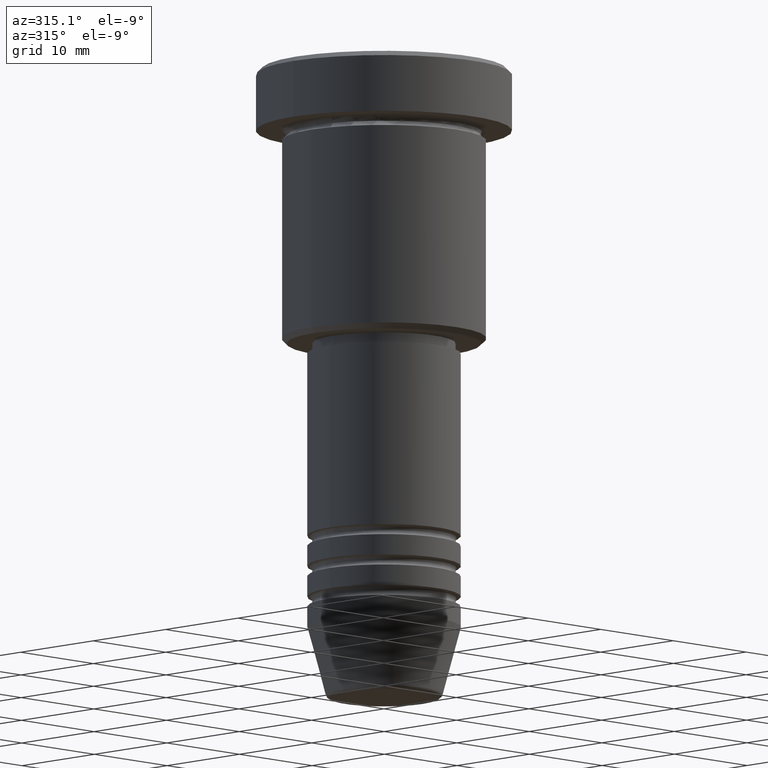
[diagram: clean part render]
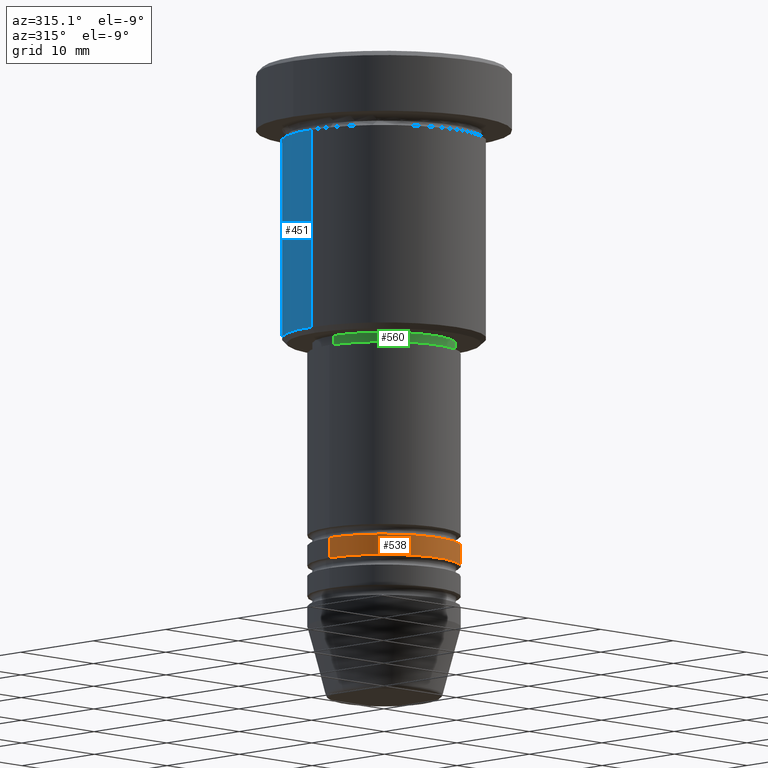
[diagram: same view with three faces highlighted in distinct colors, each labeled with its STEP entity id]
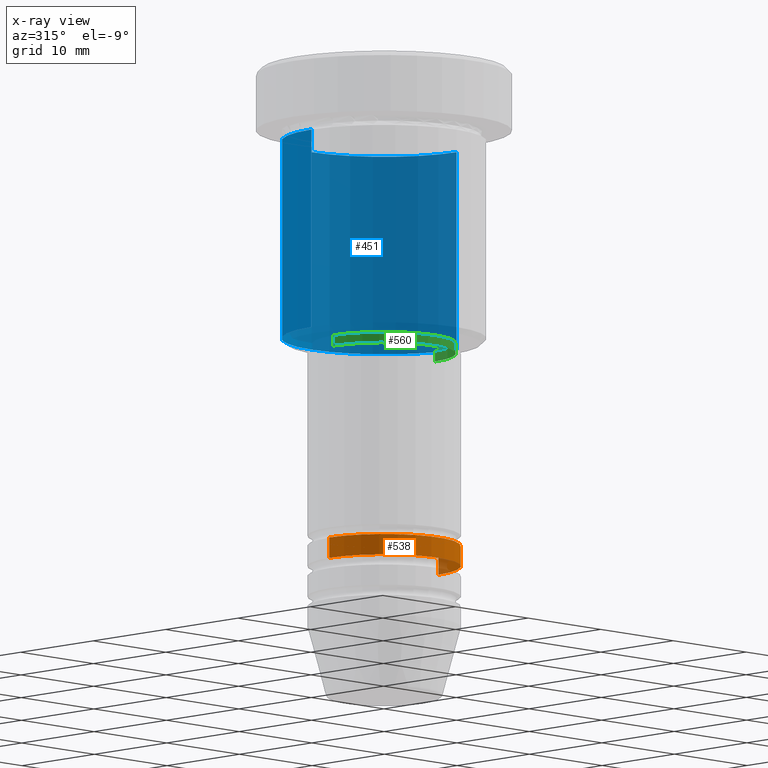
[diagram: x-ray of the same camera — body ghosted, the three highlighted faces saturated]
A machine part, auxiliary view with three faces highlighted in distinct colors.
The next image is the same camera in x-ray (body ghosted, the three faces saturated) — at least one of them is partly hidden behind the body in this view.
Their STEP definitions:

[orange] entity #538 — the highlighted cylindrical surface (partial cylindrical patch) has radius 7.5 mm, axis along (-0, -0, 1).
#19 = LINE ( 'NONE', #531, #896 ) ;
#24 = ORIENTED_EDGE ( 'NONE', *, *, #255, .F. ) ;
#52 = CARTESIAN_POINT ( 'NONE',  ( 7.500000000000000000, 0.000000000000000000, -46.99999999999998579 ) ) ;
#56 = EDGE_CURVE ( 'NONE', #293, #922, #571, .T. ) ;
#109 = VERTEX_POINT ( 'NONE', #52 ) ;
#128 = DIRECTION ( 'NONE',  ( 1.000000000000000000, 0.000000000000000000, 0.000000000000000000 ) ) ;
#158 = VERTEX_POINT ( 'NONE', #358 ) ;
#208 = CARTESIAN_POINT ( 'NONE',  ( -7.500000000000000000, 9.184850993605147944E-16, 0.000000000000000000 ) ) ;
#252 = DIRECTION ( 'NONE',  ( 1.000000000000000000, 0.000000000000000000, 0.000000000000000000 ) ) ;
#255 = EDGE_CURVE ( 'NONE', #922, #109, #506, .T. ) ;
#265 = CARTESIAN_POINT ( 'NONE',  ( -7.500000000000000000, 9.184850993605147944E-16, -48.99999999999997868 ) ) ;
#292 = AXIS2_PLACEMENT_3D ( 'NONE', #824, #373, #1113 ) ;
#293 = VERTEX_POINT ( 'NONE', #265 ) ;
#320 = CARTESIAN_POINT ( 'NONE',  ( 0.000000000000000000, 0.000000000000000000, 0.000000000000000000 ) ) ;
#336 = DIRECTION ( 'NONE',  ( -0.000000000000000000, -0.000000000000000000, 1.000000000000000000 ) ) ;
#337 = EDGE_CURVE ( 'NONE', #158, #109, #19, .T. ) ;
#358 = CARTESIAN_POINT ( 'NONE',  ( 7.500000000000000000, 0.000000000000000000, -48.99999999999997868 ) ) ;
#373 = DIRECTION ( 'NONE',  ( -0.000000000000000000, -0.000000000000000000, 1.000000000000000000 ) ) ;
#430 = FACE_OUTER_BOUND ( 'NONE', #1135, .T. ) ;
#462 = ORIENTED_EDGE ( 'NONE', *, *, #56, .F. ) ;
#506 = CIRCLE ( 'NONE', #292, 7.500000000000000000 ) ;
#531 = CARTESIAN_POINT ( 'NONE',  ( 7.500000000000000000, 0.000000000000000000, 0.000000000000000000 ) ) ;
#538 = ADVANCED_FACE ( 'NONE', ( #430 ), #789, .T. ) ;
#544 = AXIS2_PLACEMENT_3D ( 'NONE', #757, #336, #128 ) ;
#566 = EDGE_CURVE ( 'NONE', #293, #158, #1132, .T. ) ;
#571 = LINE ( 'NONE', #208, #1058 ) ;
#757 = CARTESIAN_POINT ( 'NONE',  ( 0.000000000000000000, 0.000000000000000000, -48.99999999999997868 ) ) ;
#775 = CARTESIAN_POINT ( 'NONE',  ( -7.500000000000000000, 9.184850993605147944E-16, -46.99999999999998579 ) ) ;
#789 = CYLINDRICAL_SURFACE ( 'NONE', #1040, 7.500000000000000000 ) ;
#824 = CARTESIAN_POINT ( 'NONE',  ( 0.000000000000000000, 0.000000000000000000, -46.99999999999998579 ) ) ;
#873 = ORIENTED_EDGE ( 'NONE', *, *, #337, .T. ) ;
#896 = VECTOR ( 'NONE', #995, 1000.000000000000000 ) ;
#906 = ORIENTED_EDGE ( 'NONE', *, *, #566, .T. ) ;
#922 = VERTEX_POINT ( 'NONE', #775 ) ;
#928 = DIRECTION ( 'NONE',  ( -0.000000000000000000, -0.000000000000000000, 1.000000000000000000 ) ) ;
#981 = DIRECTION ( 'NONE',  ( -0.000000000000000000, -0.000000000000000000, 1.000000000000000000 ) ) ;
#995 = DIRECTION ( 'NONE',  ( -0.000000000000000000, -0.000000000000000000, 1.000000000000000000 ) ) ;
#1040 = AXIS2_PLACEMENT_3D ( 'NONE', #320, #981, #252 ) ;
#1058 = VECTOR ( 'NONE', #928, 1000.000000000000000 ) ;
#1113 = DIRECTION ( 'NONE',  ( 1.000000000000000000, 0.000000000000000000, 0.000000000000000000 ) ) ;
#1132 = CIRCLE ( 'NONE', #544, 7.500000000000000000 ) ;
#1135 = EDGE_LOOP ( 'NONE', ( #462, #906, #873, #24 ) ) ;

[blue] entity #451 — the highlighted cylindrical surface (partial cylindrical patch) has radius 10 mm, axis along (-0, -0, 1).
#14 = CARTESIAN_POINT ( 'NONE',  ( 0.000000000000000000, 0.000000000000000000, -26.50000000000000355 ) ) ;
#71 = CARTESIAN_POINT ( 'NONE',  ( 10.00000000000000000, 0.000000000000000000, 0.000000000000000000 ) ) ;
#89 = ORIENTED_EDGE ( 'NONE', *, *, #340, .T. ) ;
#95 = DIRECTION ( 'NONE',  ( -0.000000000000000000, -0.000000000000000000, 1.000000000000000000 ) ) ;
#101 = LINE ( 'NONE', #1007, #655 ) ;
#103 = ORIENTED_EDGE ( 'NONE', *, *, #183, .F. ) ;
#159 = AXIS2_PLACEMENT_3D ( 'NONE', #14, #278, #540 ) ;
#183 = EDGE_CURVE ( 'NONE', #324, #515, #279, .T. ) ;
#186 = CARTESIAN_POINT ( 'NONE',  ( 10.00000000000000000, 0.000000000000000000, -26.50000000000000355 ) ) ;
#250 = AXIS2_PLACEMENT_3D ( 'NONE', #807, #624, #294 ) ;
#259 = CYLINDRICAL_SURFACE ( 'NONE', #876, 10.00000000000000000 ) ;
#278 = DIRECTION ( 'NONE',  ( -0.000000000000000000, -0.000000000000000000, 1.000000000000000000 ) ) ;
#279 = LINE ( 'NONE', #71, #936 ) ;
#294 = DIRECTION ( 'NONE',  ( 1.000000000000000000, 0.000000000000000000, 0.000000000000000000 ) ) ;
#296 = CIRCLE ( 'NONE', #159, 10.00000000000000000 ) ;
#322 = EDGE_CURVE ( 'NONE', #515, #768, #408, .T. ) ;
#324 = VERTEX_POINT ( 'NONE', #186 ) ;
#340 = EDGE_CURVE ( 'NONE', #1183, #768, #101, .T. ) ;
#408 = CIRCLE ( 'NONE', #250, 10.00000000000000000 ) ;
#416 = CARTESIAN_POINT ( 'NONE',  ( 10.00000000000000000, 0.000000000000000000, -6.999999999999996447 ) ) ;
#439 = ORIENTED_EDGE ( 'NONE', *, *, #1082, .T. ) ;
#451 = ADVANCED_FACE ( 'NONE', ( #514 ), #259, .T. ) ;
#514 = FACE_OUTER_BOUND ( 'NONE', #666, .T. ) ;
#515 = VERTEX_POINT ( 'NONE', #416 ) ;
#530 = ORIENTED_EDGE ( 'NONE', *, *, #322, .F. ) ;
#540 = DIRECTION ( 'NONE',  ( -1.000000000000000000, 0.000000000000000000, 0.000000000000000000 ) ) ;
#606 = CARTESIAN_POINT ( 'NONE',  ( 0.000000000000000000, 0.000000000000000000, 0.000000000000000000 ) ) ;
#624 = DIRECTION ( 'NONE',  ( -0.000000000000000000, -0.000000000000000000, 1.000000000000000000 ) ) ;
#655 = VECTOR ( 'NONE', #95, 1000.000000000000000 ) ;
#666 = EDGE_LOOP ( 'NONE', ( #439, #89, #530, #103 ) ) ;
#721 = DIRECTION ( 'NONE',  ( -0.000000000000000000, -0.000000000000000000, 1.000000000000000000 ) ) ;
#768 = VERTEX_POINT ( 'NONE', #992 ) ;
#807 = CARTESIAN_POINT ( 'NONE',  ( 0.000000000000000000, 0.000000000000000000, -6.999999999999996447 ) ) ;
#876 = AXIS2_PLACEMENT_3D ( 'NONE', #606, #986, #892 ) ;
#892 = DIRECTION ( 'NONE',  ( 1.000000000000000000, 0.000000000000000000, 0.000000000000000000 ) ) ;
#907 = CARTESIAN_POINT ( 'NONE',  ( -10.00000000000000000, 1.224646799147353256E-15, -26.50000000000000355 ) ) ;
#936 = VECTOR ( 'NONE', #721, 1000.000000000000000 ) ;
#986 = DIRECTION ( 'NONE',  ( -0.000000000000000000, -0.000000000000000000, 1.000000000000000000 ) ) ;
#992 = CARTESIAN_POINT ( 'NONE',  ( -10.00000000000000000, 1.224646799147353256E-15, -6.999999999999996447 ) ) ;
#1007 = CARTESIAN_POINT ( 'NONE',  ( -10.00000000000000000, 1.224646799147353256E-15, 0.000000000000000000 ) ) ;
#1082 = EDGE_CURVE ( 'NONE', #324, #1183, #296, .T. ) ;
#1183 = VERTEX_POINT ( 'NONE', #907 ) ;

[green] entity #560 — the highlighted cylindrical surface (partial cylindrical patch) has radius 7 mm, axis along (-0, -0, 1).
#48 = FACE_OUTER_BOUND ( 'NONE', #537, .T. ) ;
#107 = LINE ( 'NONE', #615, #196 ) ;
#124 = VERTEX_POINT ( 'NONE', #162 ) ;
#161 = LINE ( 'NONE', #341, #715 ) ;
#162 = CARTESIAN_POINT ( 'NONE',  ( -6.999999999999999112, 8.572527594031472204E-16, -26.99999999999999645 ) ) ;
#166 = DIRECTION ( 'NONE',  ( -0.000000000000000000, -0.000000000000000000, 1.000000000000000000 ) ) ;
#169 = EDGE_CURVE ( 'NONE', #351, #394, #213, .T. ) ;
#178 = CARTESIAN_POINT ( 'NONE',  ( -6.999999999999999112, 8.572527594031472204E-16, -27.99999999999999645 ) ) ;
#190 = ORIENTED_EDGE ( 'NONE', *, *, #264, .F. ) ;
#196 = VECTOR ( 'NONE', #829, 1000.000000000000000 ) ;
#213 = CIRCLE ( 'NONE', #874, 6.999999999999999112 ) ;
#264 = EDGE_CURVE ( 'NONE', #124, #1161, #656, .T. ) ;
#332 = EDGE_CURVE ( 'NONE', #351, #124, #107, .T. ) ;
#341 = CARTESIAN_POINT ( 'NONE',  ( 6.999999999999999112, 0.000000000000000000, 0.000000000000000000 ) ) ;
#351 = VERTEX_POINT ( 'NONE', #178 ) ;
#370 = DIRECTION ( 'NONE',  ( 1.000000000000000000, 0.000000000000000000, 0.000000000000000000 ) ) ;
#394 = VERTEX_POINT ( 'NONE', #929 ) ;
#410 = CARTESIAN_POINT ( 'NONE',  ( 0.000000000000000000, 0.000000000000000000, -27.99999999999999645 ) ) ;
#469 = CARTESIAN_POINT ( 'NONE',  ( 0.000000000000000000, 0.000000000000000000, -26.99999999999999645 ) ) ;
#488 = CYLINDRICAL_SURFACE ( 'NONE', #490, 6.999999999999999112 ) ;
#490 = AXIS2_PLACEMENT_3D ( 'NONE', #948, #166, #782 ) ;
#537 = EDGE_LOOP ( 'NONE', ( #941, #642, #1085, #190 ) ) ;
#547 = EDGE_CURVE ( 'NONE', #394, #1161, #161, .T. ) ;
#560 = ADVANCED_FACE ( 'NONE', ( #48 ), #488, .T. ) ;
#593 = DIRECTION ( 'NONE',  ( -0.000000000000000000, -0.000000000000000000, 1.000000000000000000 ) ) ;
#615 = CARTESIAN_POINT ( 'NONE',  ( -6.999999999999999112, 8.572527594031472204E-16, 0.000000000000000000 ) ) ;
#642 = ORIENTED_EDGE ( 'NONE', *, *, #169, .T. ) ;
#656 = CIRCLE ( 'NONE', #1076, 6.999999999999999112 ) ;
#715 = VECTOR ( 'NONE', #953, 1000.000000000000000 ) ;
#742 = DIRECTION ( 'NONE',  ( -0.000000000000000000, -0.000000000000000000, 1.000000000000000000 ) ) ;
#782 = DIRECTION ( 'NONE',  ( 1.000000000000000000, 0.000000000000000000, 0.000000000000000000 ) ) ;
#829 = DIRECTION ( 'NONE',  ( -0.000000000000000000, -0.000000000000000000, 1.000000000000000000 ) ) ;
#874 = AXIS2_PLACEMENT_3D ( 'NONE', #410, #593, #370 ) ;
#891 = CARTESIAN_POINT ( 'NONE',  ( 6.999999999999999112, 0.000000000000000000, -26.99999999999999645 ) ) ;
#929 = CARTESIAN_POINT ( 'NONE',  ( 6.999999999999999112, 0.000000000000000000, -27.99999999999999645 ) ) ;
#941 = ORIENTED_EDGE ( 'NONE', *, *, #332, .F. ) ;
#948 = CARTESIAN_POINT ( 'NONE',  ( 0.000000000000000000, 0.000000000000000000, 0.000000000000000000 ) ) ;
#953 = DIRECTION ( 'NONE',  ( -0.000000000000000000, -0.000000000000000000, 1.000000000000000000 ) ) ;
#1076 = AXIS2_PLACEMENT_3D ( 'NONE', #469, #742, #1127 ) ;
#1085 = ORIENTED_EDGE ( 'NONE', *, *, #547, .T. ) ;
#1127 = DIRECTION ( 'NONE',  ( 1.000000000000000000, 0.000000000000000000, 0.000000000000000000 ) ) ;
#1161 = VERTEX_POINT ( 'NONE', #891 ) ;